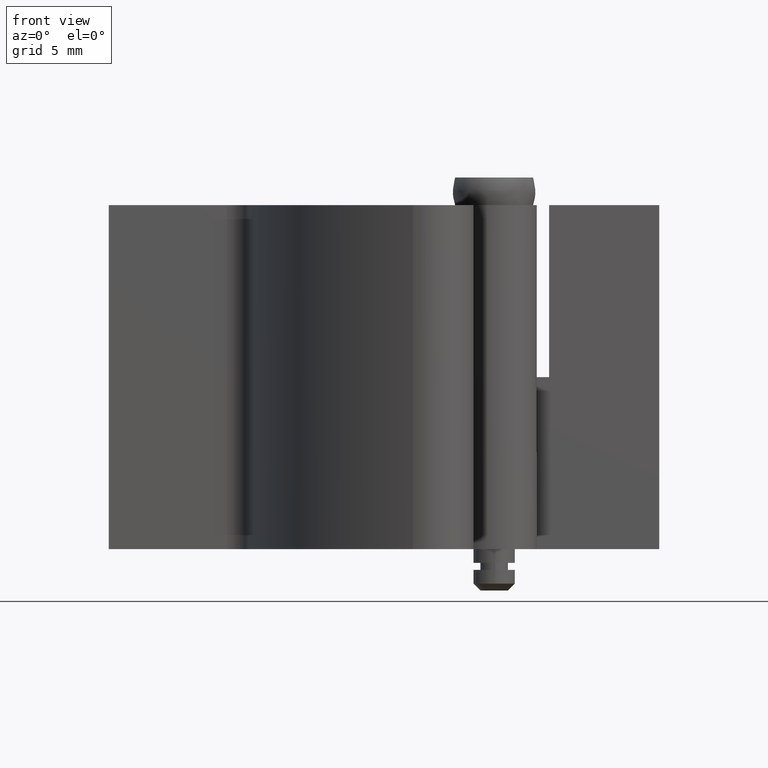
[diagram: clean part render]
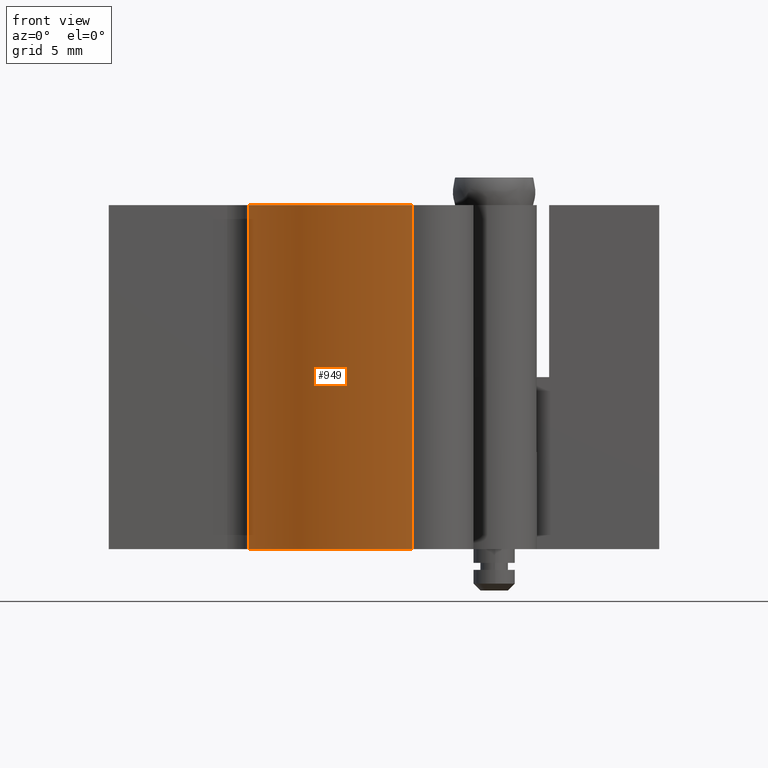
[diagram: same view with one face highlighted and labeled with its STEP entity id]
A machine part, front view. The second image highlights one B-rep face of the part: STEP entity #949.
In plain terms, the highlighted face is a freeform B-spline surface patch.
Its self-contained STEP definition (entity closure, byte-faithful):
#581=CARTESIAN_POINT('',(-17.818610504459251,0.170425412215495,28.000008000000001));
#582=VERTEX_POINT('',#581);
#596=CARTESIAN_POINT('',(-5.909638794925980,-14.662564264973099,28.000008000000001));
#597=VERTEX_POINT('',#596);
#598=CARTESIAN_POINT('',(-17.818610504459251,0.170425412215495,28.000008000000001));
#599=CARTESIAN_POINT('',(-15.980130291212712,-10.550689780048494,28.000008000000001));
#600=CARTESIAN_POINT('',(-5.909638794925980,-14.662564264973099,28.000008000000001));
#608=(BOUNDED_CURVE()B_SPLINE_CURVE(2,(#598,#599,#600),.UNSPECIFIED.,.F.,.U.)CURVE()GEOMETRIC_REPRESENTATION_ITEM()QUASI_UNIFORM_CURVE()RATIONAL_B_SPLINE_CURVE((1.0,0.874370865723024,1.0))REPRESENTATION_ITEM(''));
#609=EDGE_CURVE('',#582,#597,#608,.T.);
#878=CARTESIAN_POINT('',(-5.909638794925980,-14.662564264973099,3.0));
#879=VERTEX_POINT('',#878);
#903=CARTESIAN_POINT('',(-5.909638794925980,-14.662564264973099,28.000008000000001));
#904=CARTESIAN_POINT('',(-5.909638794925980,-14.662564264973099,3.0));
#905=QUASI_UNIFORM_CURVE('',1,(#903,#904),.UNSPECIFIED.,.F.,.U.);
#906=EDGE_CURVE('',#597,#879,#905,.T.);
#911=CARTESIAN_POINT('',(-17.944722909756610,1.016218540726416,28.625008200000000));
#912=CARTESIAN_POINT('',(-17.944722909756610,1.016218540726416,2.359374795000001));
#913=CARTESIAN_POINT('',(-16.423372847257117,-10.975058928088693,28.625008200000007));
#914=CARTESIAN_POINT('',(-16.423372847257117,-10.975058928088693,2.359374795000000));
#915=CARTESIAN_POINT('',(-5.025407832345877,-14.998941986235327,28.625008200000007));
#916=CARTESIAN_POINT('',(-5.025407832345877,-14.998941986235327,2.359374795000000));
#924=(BOUNDED_SURFACE()B_SPLINE_SURFACE(1,2,((#911,#913,#915),(#912,#914,#916)),.UNSPECIFIED.,.F.,.F.,.U.)B_SPLINE_SURFACE_WITH_KNOTS((2,2),(3,3),(0.0,26.265633404999999),(0.0,22.230994123389621),.UNSPECIFIED.)GEOMETRIC_REPRESENTATION_ITEM()RATIONAL_B_SPLINE_SURFACE(((1.0,0.849735312846382,0.996663035056966),(1.0,0.849735312846382,0.996663035056966)))REPRESENTATION_ITEM('')SURFACE());
#925=CARTESIAN_POINT('',(-17.818610504459251,0.170425412215495,3.0));
#926=VERTEX_POINT('',#925);
#927=CARTESIAN_POINT('',(-17.818610504459251,0.170425412215495,3.0));
#928=CARTESIAN_POINT('',(-15.980130291212712,-10.550689780048494,3.000000000000000));
#929=CARTESIAN_POINT('',(-5.909638794925980,-14.662564264973099,3.0));
#937=(BOUNDED_CURVE()B_SPLINE_CURVE(2,(#927,#928,#929),.UNSPECIFIED.,.F.,.U.)CURVE()GEOMETRIC_REPRESENTATION_ITEM()QUASI_UNIFORM_CURVE()RATIONAL_B_SPLINE_CURVE((1.0,0.874370865723024,1.0))REPRESENTATION_ITEM(''));
#938=EDGE_CURVE('',#926,#879,#937,.T.);
#939=ORIENTED_EDGE('',*,*,#938,.T.);
#940=ORIENTED_EDGE('',*,*,#906,.F.);
#941=ORIENTED_EDGE('',*,*,#609,.F.);
#942=CARTESIAN_POINT('',(-17.818610504459251,0.170425412215495,28.000008000000001));
#943=CARTESIAN_POINT('',(-17.818610504459251,0.170425412215495,3.0));
#944=QUASI_UNIFORM_CURVE('',1,(#942,#943),.UNSPECIFIED.,.F.,.U.);
#945=EDGE_CURVE('',#582,#926,#944,.T.);
#946=ORIENTED_EDGE('',*,*,#945,.T.);
#947=EDGE_LOOP('',(#939,#940,#941,#946));
#948=FACE_OUTER_BOUND('',#947,.T.);
#949=ADVANCED_FACE('',(#948),#924,.T.);